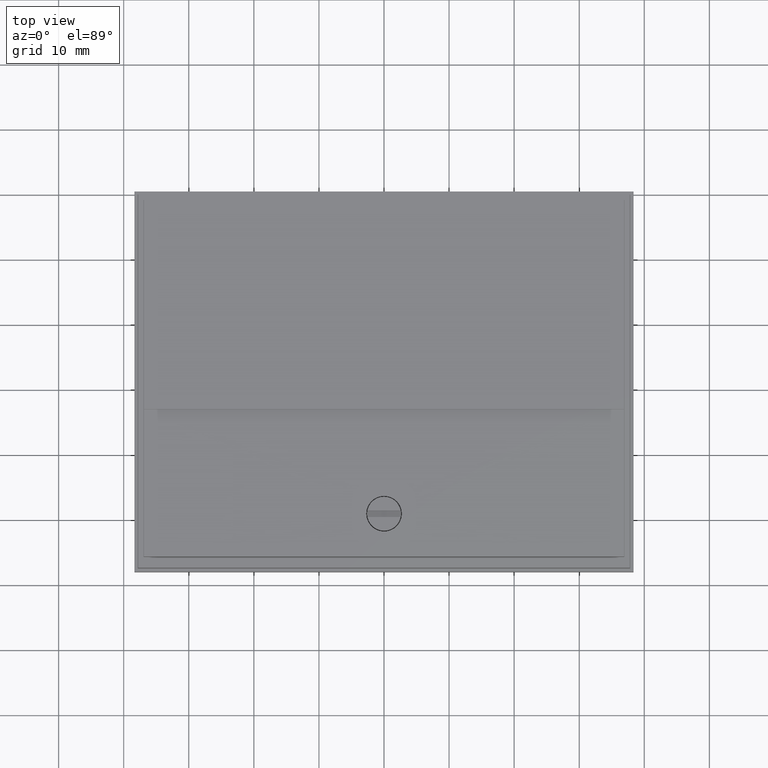
[diagram: clean part render]
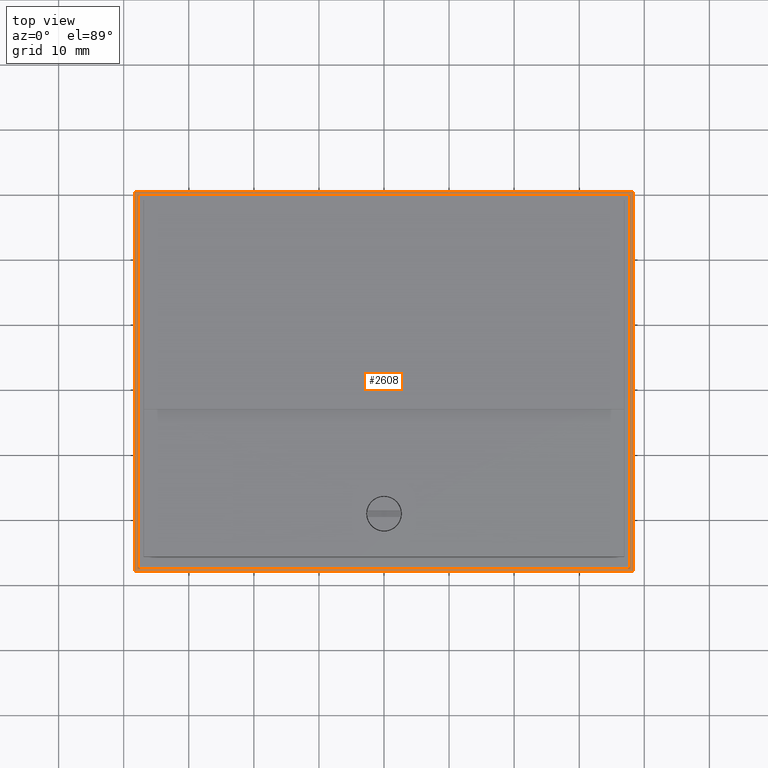
[diagram: same view with one face highlighted and labeled with its STEP entity id]
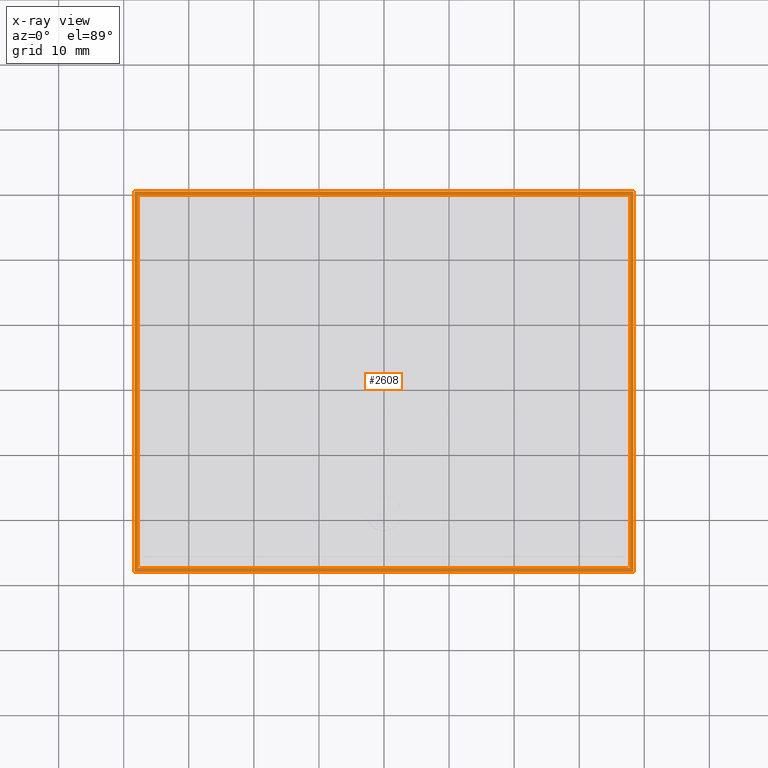
[diagram: x-ray of the same camera — body ghosted, the highlighted face saturated]
A machine part, top view. The second image highlights one B-rep face of the part: STEP entity #2608.
The next image is the same camera in x-ray: the body ghosted, the highlighted face saturated — about 0% of this face is hidden behind the body in this view.
In plain terms, the highlighted planar face has unit normal (0, 0, -1).
Its self-contained STEP definition (entity closure, byte-faithful):
#14 = ORIENTED_EDGE ( 'NONE', *, *, #814, .F. ) ;
#44 = CARTESIAN_POINT ( 'NONE',  ( 1.509842519685039575, 1.955318603497518515, -0.1157480314960630252 ) ) ;
#46 = CARTESIAN_POINT ( 'NONE',  ( 1.490157480314960647, 1.935633564127441142, -0.1157480314960629975 ) ) ;
#239 = DIRECTION ( 'NONE',  ( 0.000000000000000000, 1.000000000000000000, 0.000000000000000000 ) ) ;
#458 = LINE ( 'NONE', #1961, #4250 ) ;
#493 = EDGE_CURVE ( 'NONE', #4242, #4297, #5411, .T. ) ;
#507 = FACE_BOUND ( 'NONE', #3363, .T. ) ;
#537 = PLANE ( 'NONE',  #2282 ) ;
#548 = VECTOR ( 'NONE', #4345, 39.37007874015748143 ) ;
#671 = CARTESIAN_POINT ( 'NONE',  ( -1.488783170426650759, 1.935633564127440254, -0.1157480314960629975 ) ) ;
#735 = ORIENTED_EDGE ( 'NONE', *, *, #5306, .F. ) ;
#800 = EDGE_CURVE ( 'NONE', #2219, #5941, #5708, .T. ) ;
#814 = EDGE_CURVE ( 'NONE', #5941, #4242, #3448, .T. ) ;
#841 = EDGE_CURVE ( 'NONE', #4297, #2219, #5342, .T. ) ;
#1156 = ORIENTED_EDGE ( 'NONE', *, *, #4085, .F. ) ;
#1405 = VERTEX_POINT ( 'NONE', #1569 ) ;
#1463 = VERTEX_POINT ( 'NONE', #5354 ) ;
#1529 = ORIENTED_EDGE ( 'NONE', *, *, #2302, .F. ) ;
#1541 = CARTESIAN_POINT ( 'NONE',  ( 1.508468209796731907, -0.3450823830250755453, -0.1157480314960628032 ) ) ;
#1569 = CARTESIAN_POINT ( 'NONE',  ( 1.508468209796731907, 1.955318603497519625, -0.1157480314960630113 ) ) ;
#1793 = VECTOR ( 'NONE', #239, 39.37007874015748143 ) ;
#1816 = VECTOR ( 'NONE', #2181, 39.37007874015748143 ) ;
#1961 = CARTESIAN_POINT ( 'NONE',  ( 1.509842519685039575, -0.3450823830250754343, -0.1157480314960622064 ) ) ;
#2181 = DIRECTION ( 'NONE',  ( -0.000000000000000000, -1.000000000000000000, -0.000000000000000000 ) ) ;
#2219 = VERTEX_POINT ( 'NONE', #671 ) ;
#2227 = CARTESIAN_POINT ( 'NONE',  ( -1.508468209796730131, 1.955318603497519625, -0.1157480314960626228 ) ) ;
#2282 = AXIS2_PLACEMENT_3D ( 'NONE', #2375, #3719, #3267 ) ;
#2302 = EDGE_CURVE ( 'NONE', #1463, #3343, #5294, .T. ) ;
#2375 = CARTESIAN_POINT ( 'NONE',  ( 1.490157480314960647, 0.6299212598425196763, -0.1157480314960629975 ) ) ;
#2462 = VECTOR ( 'NONE', #3753, 39.37007874015748143 ) ;
#2498 = DIRECTION ( 'NONE',  ( 1.000000000000000000, -0.000000000000000000, 0.000000000000000000 ) ) ;
#2608 = ADVANCED_FACE ( 'NONE', ( #3235, #507 ), #537, .F. ) ;
#2616 = EDGE_CURVE ( 'NONE', #3343, #1405, #4191, .T. ) ;
#3002 = DIRECTION ( 'NONE',  ( 0.000000000000000000, 1.000000000000000000, -0.000000000000000000 ) ) ;
#3131 = CARTESIAN_POINT ( 'NONE',  ( 1.508468209796731019, 0.6299212598425196763, -0.1157480314960630252 ) ) ;
#3235 = FACE_OUTER_BOUND ( 'NONE', #5301, .T. ) ;
#3267 = DIRECTION ( 'NONE',  ( -1.000000000000000000, 0.000000000000000000, -0.000000000000000000 ) ) ;
#3343 = VERTEX_POINT ( 'NONE', #2227 ) ;
#3363 = EDGE_LOOP ( 'NONE', ( #5698, #3782, #5742, #14 ) ) ;
#3448 = LINE ( 'NONE', #4796, #5654 ) ;
#3478 = CARTESIAN_POINT ( 'NONE',  ( -1.488783170426651203, -0.3253973436549964515, -0.1157480314960627754 ) ) ;
#3719 = DIRECTION ( 'NONE',  ( 0.000000000000000000, 0.000000000000000000, -1.000000000000000000 ) ) ;
#3753 = DIRECTION ( 'NONE',  ( -0.000000000000000000, -1.000000000000000000, -0.000000000000000000 ) ) ;
#3782 = ORIENTED_EDGE ( 'NONE', *, *, #841, .F. ) ;
#3886 = ORIENTED_EDGE ( 'NONE', *, *, #2616, .F. ) ;
#3936 = CARTESIAN_POINT ( 'NONE',  ( -1.508468209796731019, 0.6299212598425196763, -0.1157480314960622064 ) ) ;
#3941 = CARTESIAN_POINT ( 'NONE',  ( 1.488783170426652980, 1.935633564127440920, -0.1157480314960625950 ) ) ;
#4066 = LINE ( 'NONE', #3131, #1816 ) ;
#4085 = EDGE_CURVE ( 'NONE', #1405, #4314, #4066, .T. ) ;
#4191 = LINE ( 'NONE', #44, #4609 ) ;
#4242 = VERTEX_POINT ( 'NONE', #5116 ) ;
#4250 = VECTOR ( 'NONE', #5142, 39.37007874015748143 ) ;
#4297 = VERTEX_POINT ( 'NONE', #3941 ) ;
#4314 = VERTEX_POINT ( 'NONE', #1541 ) ;
#4345 = DIRECTION ( 'NONE',  ( -1.000000000000000000, 0.000000000000000000, -0.000000000000000000 ) ) ;
#4450 = CARTESIAN_POINT ( 'NONE',  ( 1.488783170426653424, 0.6299212598425196763, -0.1157480314960629975 ) ) ;
#4609 = VECTOR ( 'NONE', #5588, 39.37007874015748143 ) ;
#4796 = CARTESIAN_POINT ( 'NONE',  ( 1.490157480314960647, -0.3253973436549964515, -0.1157480314960629975 ) ) ;
#5116 = CARTESIAN_POINT ( 'NONE',  ( 1.488783170426652980, -0.3253973436549965070, -0.1157480314960624146 ) ) ;
#5142 = DIRECTION ( 'NONE',  ( -1.000000000000000000, -0.000000000000000000, -0.000000000000000000 ) ) ;
#5294 = LINE ( 'NONE', #3936, #5561 ) ;
#5301 = EDGE_LOOP ( 'NONE', ( #3886, #1529, #735, #1156 ) ) ;
#5306 = EDGE_CURVE ( 'NONE', #4314, #1463, #458, .T. ) ;
#5342 = LINE ( 'NONE', #46, #548 ) ;
#5354 = CARTESIAN_POINT ( 'NONE',  ( -1.508468209796729020, -0.3450823830250755453, -0.1157480314960625950 ) ) ;
#5411 = LINE ( 'NONE', #4450, #1793 ) ;
#5561 = VECTOR ( 'NONE', #3002, 39.37007874015748143 ) ;
#5588 = DIRECTION ( 'NONE',  ( 1.000000000000000000, 0.000000000000000000, 0.000000000000000000 ) ) ;
#5654 = VECTOR ( 'NONE', #2498, 39.37007874015748143 ) ;
#5698 = ORIENTED_EDGE ( 'NONE', *, *, #800, .F. ) ;
#5708 = LINE ( 'NONE', #5804, #2462 ) ;
#5742 = ORIENTED_EDGE ( 'NONE', *, *, #493, .F. ) ;
#5804 = CARTESIAN_POINT ( 'NONE',  ( -1.488783170426649871, 0.6299212598425196763, -0.1157480314960629975 ) ) ;
#5941 = VERTEX_POINT ( 'NONE', #3478 ) ;